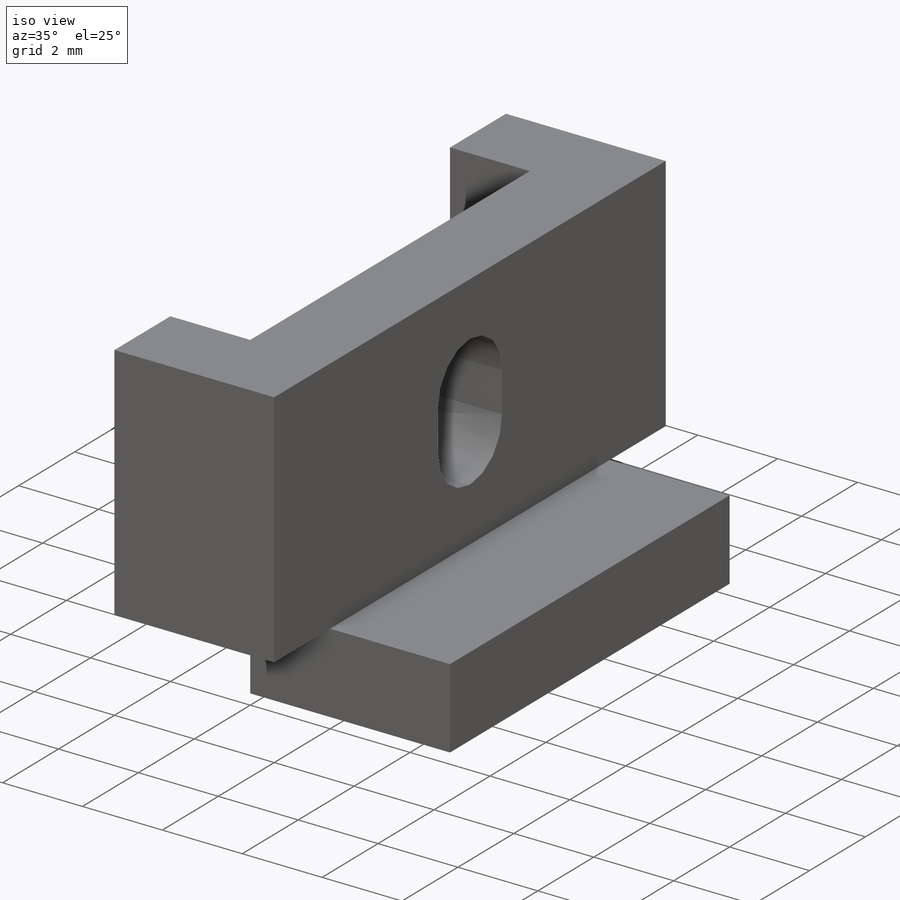
[diagram: iso view]
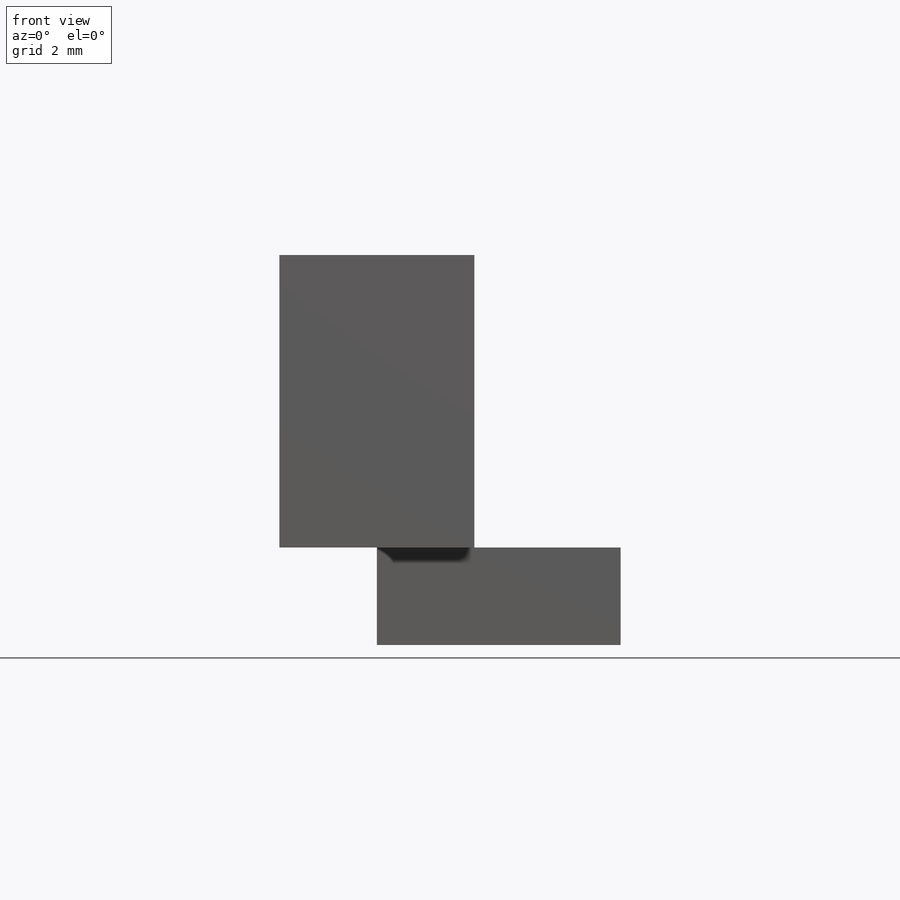
[diagram: front view]
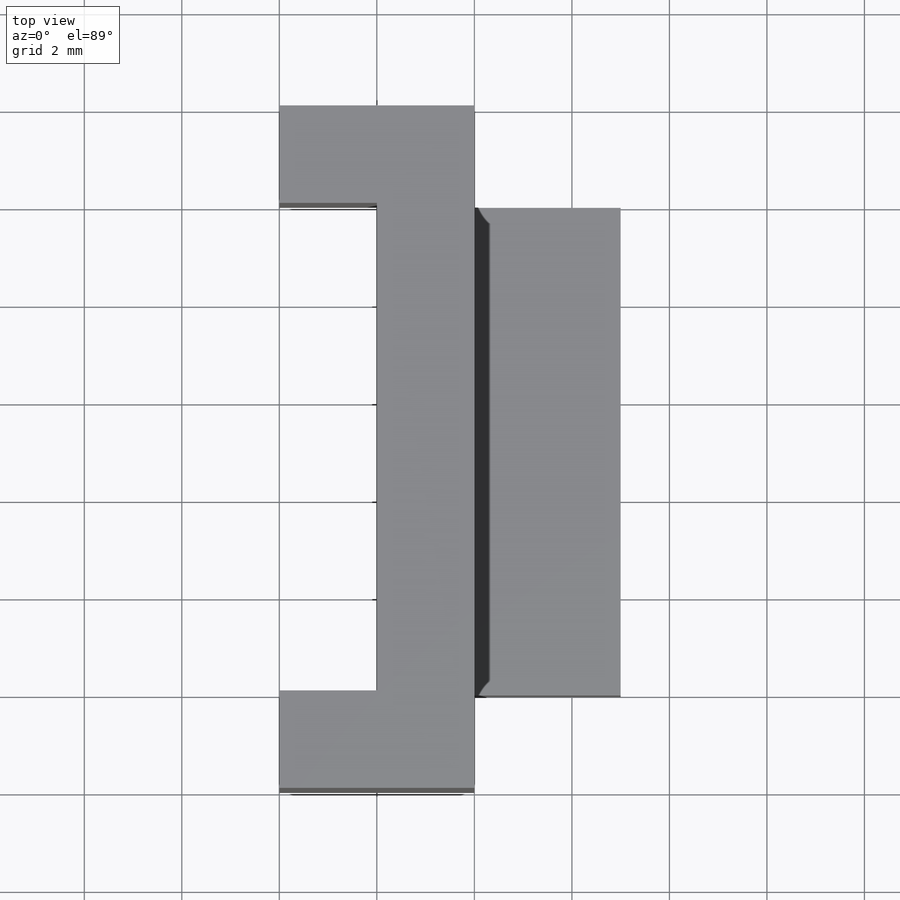
[diagram: top view]
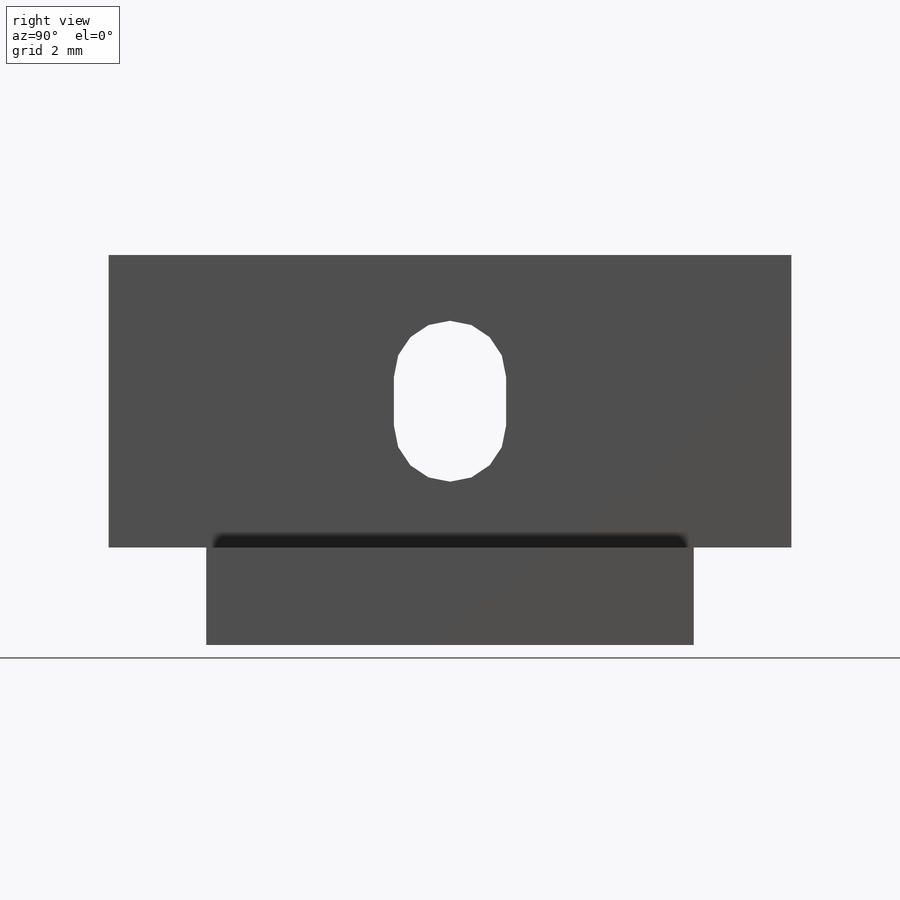
[diagram: right view]
SOLIDWORKS PART (.sldprt)
format: sldprt  version: not decoded by parser v0  size: 227,840 bytes
history: native  units: mm
features: sketch x5, cut_extrude x4, material x1, extrude x1, fillet x1, plane x1 (+11 scaffold rows collapsed)
feature tree (24):
  scaffold x11  (default folders/planes/origin — collapsed)
  material  "Copper"
  sketch  "Sketch1"  dims[D1=7.0mm D2=8.0mm]
  extrude  "Extrude1"  Depth=14mm
  sketch  "Sketch2"  dims[D1=2.0mm D2=10.0mm D3=2.0mm]
  cut_extrude  "Extrude2"  [1 undecoded]
  sketch  "Sketch3"  dims[D1=2.0mm D2=3.0mm]
  cut_extrude  "Extrude3"  [1 undecoded]
  sketch  "Sketch4"  dims[D1=10.0mm D2=2.0mm D3=2.0mm]
  cut_extrude  "Extrude4"  [1 undecoded]
  sketch  "Sketch5"  dims[D1=1.15mm D2=1.15mm D3=1.65mm D4=1.65mm]
  cut_extrude  "Extrude5"  [1 undecoded]
  fillet  "Fillet1"  Radius=1.15mm
  plane  "Plane1"
decode coverage: 7 of 11 modeling features carry decoded parameters
note: 4 parameter values undecoded
summary: no parameter record found for 4 features
note: suppression state not decoded; provenance and decode notes live in map.json
